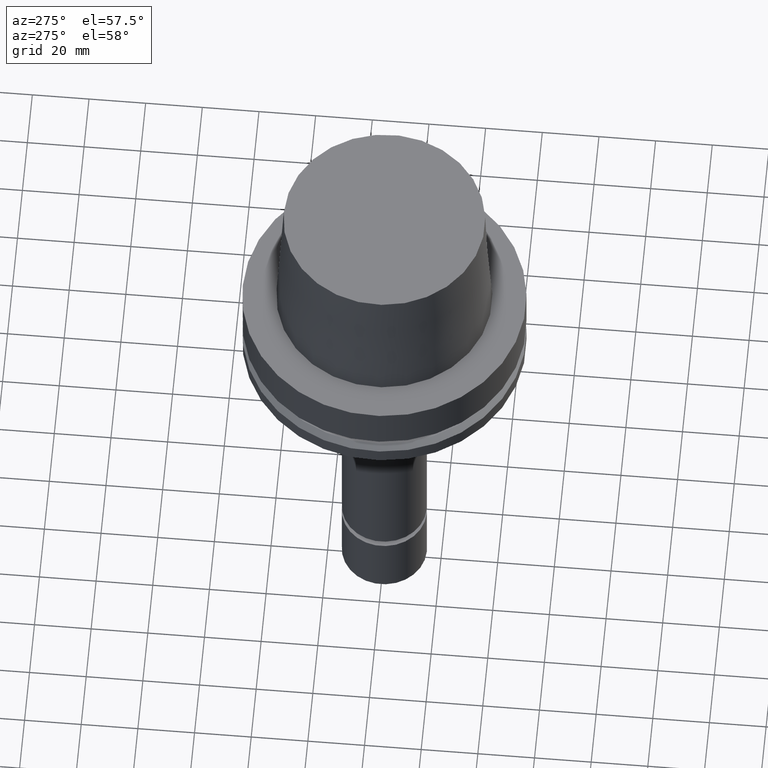
[diagram: clean part render]
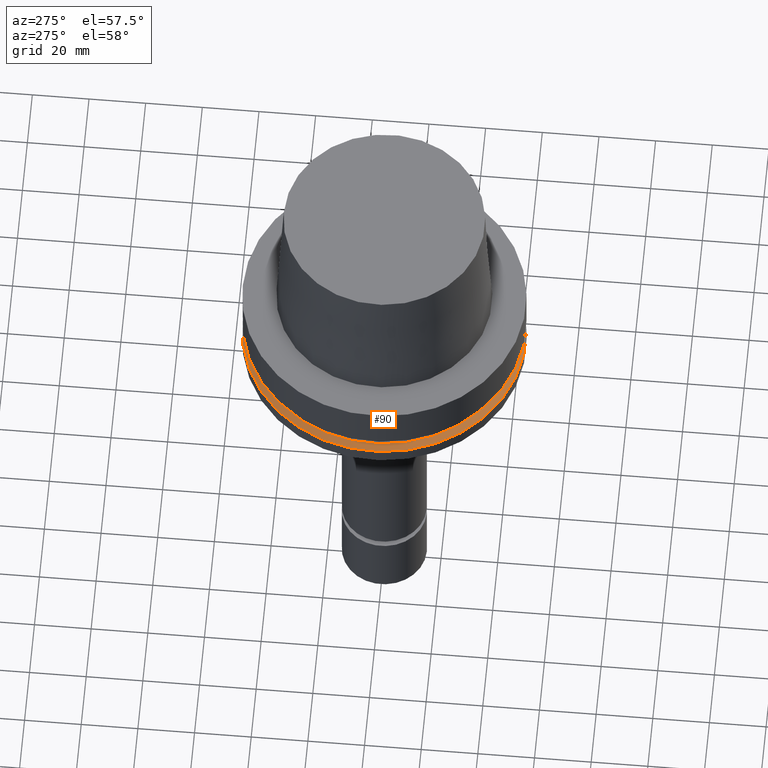
[diagram: same view with one face highlighted and labeled with its STEP entity id]
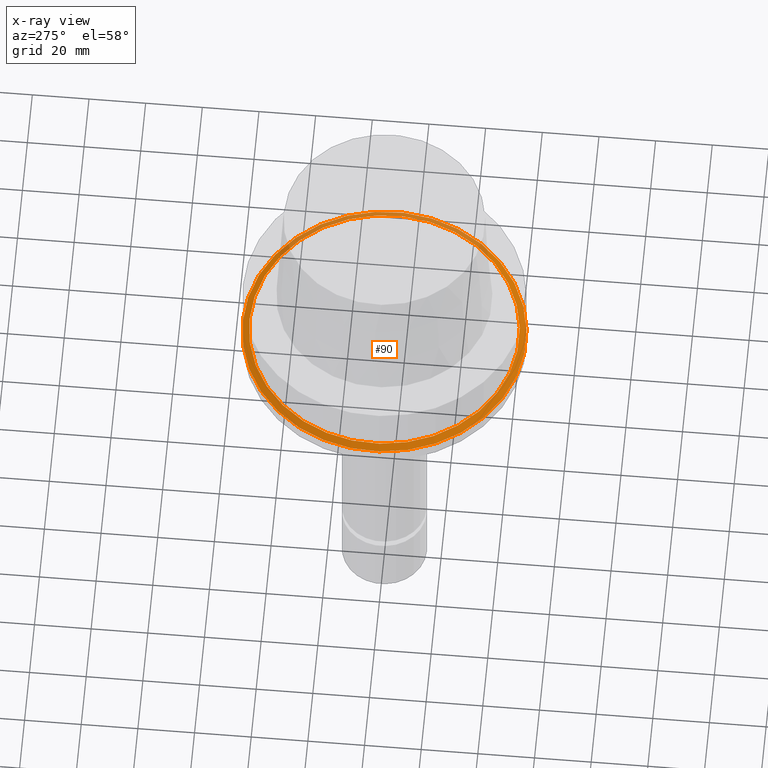
[diagram: x-ray of the same camera — body ghosted, the highlighted face saturated]
A machine part, auxiliary view. The second image highlights one B-rep face of the part: STEP entity #90.
The next image is the same camera in x-ray: the body ghosted, the highlighted face saturated — about 18% of this face is hidden behind the body in this view.
In plain terms, the highlighted conical surface has half-angle 60 deg.
Its self-contained STEP definition (entity closure, byte-faithful):
#81=EDGE_CURVE('Unnamed[1]',#222,#222,#223,.T.);
#90=ADVANCED_FACE('Unnamed[1]',(#235,#236),#237,.T.);
#194=EDGE_CURVE('Unnamed[1]',#396,#396,#397,.T.);
#222=VERTEX_POINT('',#422);
#223=CIRCLE('',#423,47.62259526);
#235=FACE_BOUND('',#438,.T.);
#236=FACE_BOUND('',#439,.T.);
#237=CONICAL_SURFACE('',#440,48.81129763,1.04719755328238);
#396=VERTEX_POINT('',#638);
#397=CIRCLE('',#639,50.0);
#422=CARTESIAN_POINT('',(1.33945743656742E-015,47.62259526,-21.875));
#423=AXIS2_PLACEMENT_3D('',#655,#656,#657);
#438=EDGE_LOOP('',(#670));
#439=EDGE_LOOP('',(#671));
#440=AXIS2_PLACEMENT_3D('',#672,#673,#674);
#638=CARTESIAN_POINT('',(1.42350465615161E-015,50.0,-23.24759526));
#639=AXIS2_PLACEMENT_3D('',#848,#849,#850);
#655=CARTESIAN_POINT('',(1.33945743656742E-015,2.67891487313483E-015,-21.875));
#656=DIRECTION('',(6.12323399573676E-017,1.22464679914735E-016,-1.0));
#657=DIRECTION('',(-1.23259516440783E-032,1.0,1.22464679914735E-016));
#670=ORIENTED_EDGE('',*,*,#194,.F.);
#671=ORIENTED_EDGE('',*,*,#81,.T.);
#672=CARTESIAN_POINT('',(1.38148104635951E-015,2.76296209271903E-015,-22.56129763));
#673=DIRECTION('',(6.12323399573677E-017,1.22464679914735E-016,-1.0));
#674=DIRECTION('',(-1.23259516440783E-032,1.0,1.22464679914735E-016));
#848=CARTESIAN_POINT('',(1.42350465615161E-015,2.84700931230322E-015,-23.24759526));
#849=DIRECTION('',(6.12323399573677E-017,1.22464679914735E-016,-1.0));
#850=DIRECTION('',(-1.23259516440783E-032,1.0,1.22464679914735E-016));